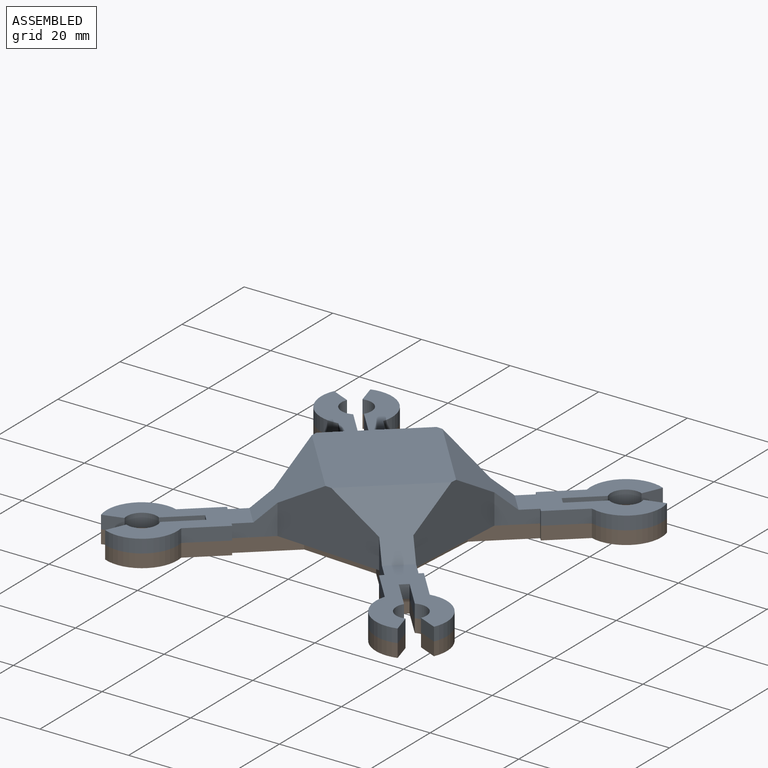
[diagram: assembled view]
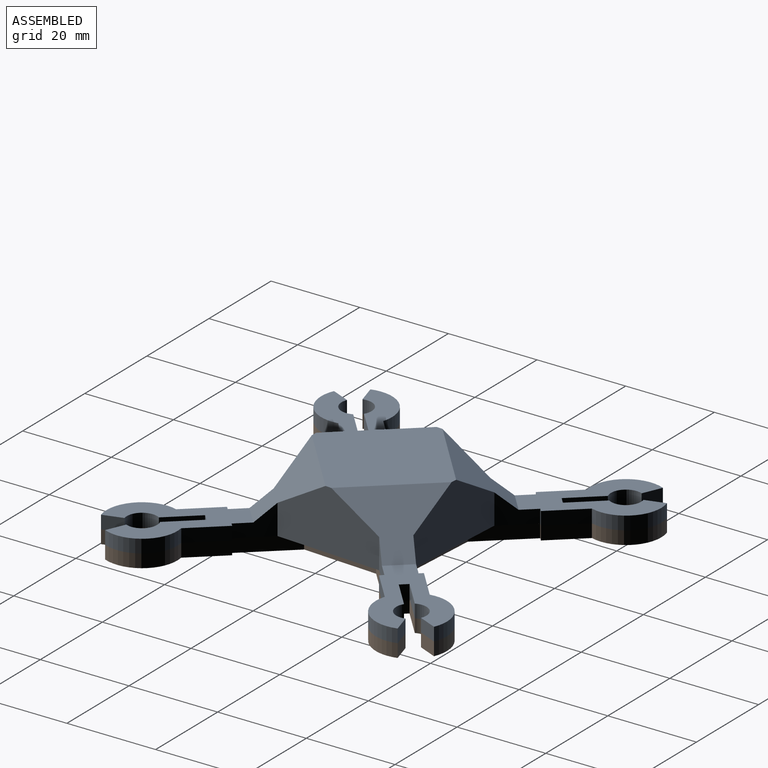
[diagram: assembled view, second angle]
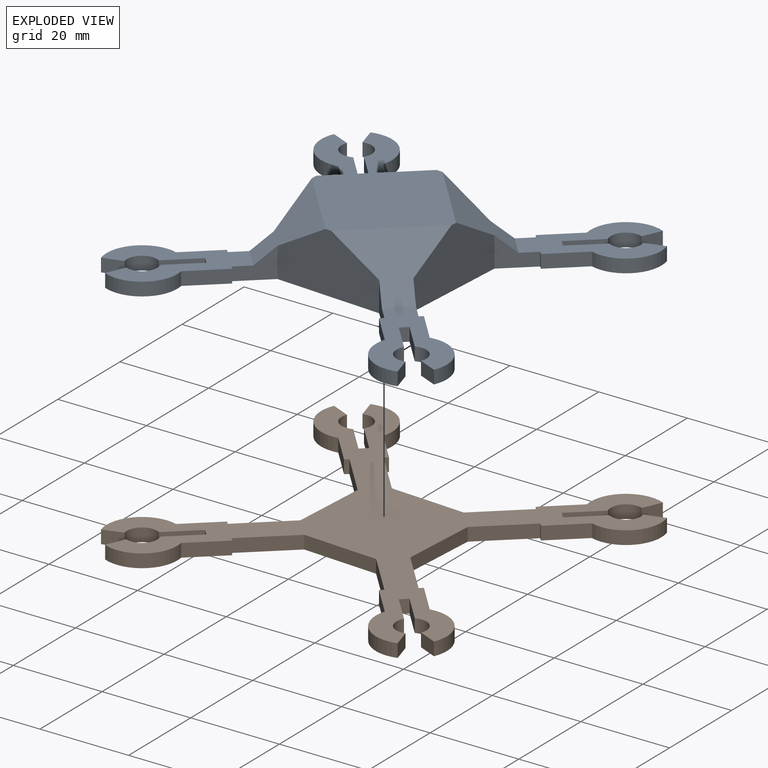
[diagram: exploded view]
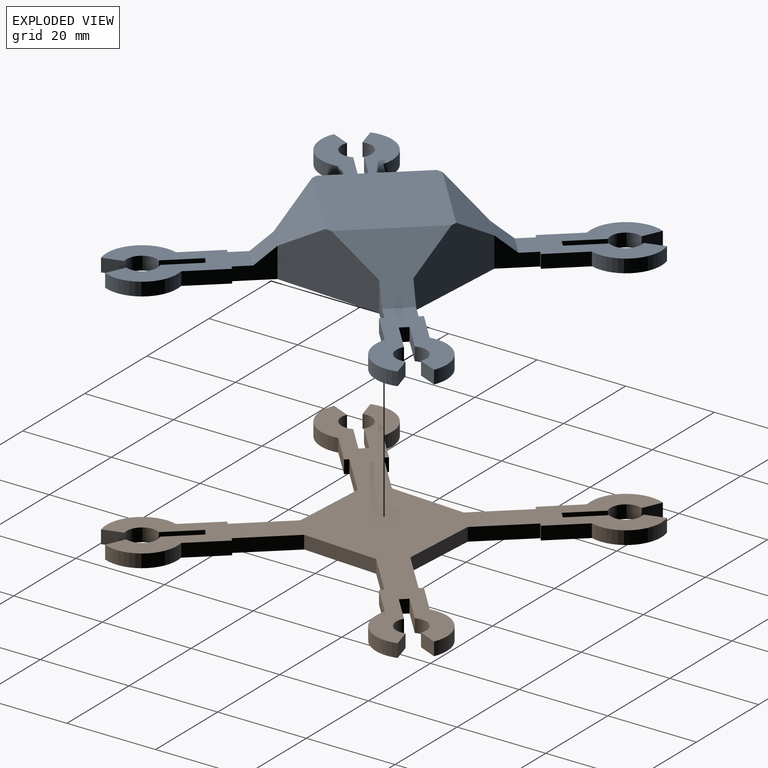
[diagram: exploded view, second angle]
ASSEMBLY  parts=2 mates=2
PART A: 147 faces, bbox 79.6x79.6x13.5 mm
  f0: plane 79.63x79.63mm, normal (0,0,-1), area 836.9mm2, adj f4,f5,f6,f7,f8,f9,f10,f11
  f1: plane 24.62x24.62mm, normal (0,0,1), area 222.9mm2, adj f8,f11,f12,f13,f14,f54,f55,f56
  f2: plane 24.62x24.62mm, normal (0,0,1), area 222.9mm2, adj f5,f10,f41,f42,f43,f44,f45,f46
  f3: plane 24.62x24.62mm, normal (0,0,1), area 222.9mm2, adj f4,f7,f28,f29,f30,f31,f32,f33
  f4: plane 6.78x6.05mm, normal (0.71,0.71,0), area 34.2mm2, adj f0,f3,f40,f68,f73
  f5: plane 6.78x6.05mm, normal (0.71,-0.71,0), area 34.2mm2, adj f0,f2,f41,f68,f70
  f6: plane 6.78x6.05mm, normal (0.71,-0.71,0), area 34.2mm2, adj f0,f27,f64,f67,f72
  f7: plane 6.78x6.05mm, normal (-0.71,-0.71,0), area 34.2mm2, adj f0,f3,f28,f67,f73
  f8: plane 6.78x6.05mm, normal (-0.71,-0.71,0), area 34.2mm2, adj f0,f1,f14,f66,f71
  f9: plane 6.78x6.05mm, normal (-0.71,0.71,0), area 34.2mm2, adj f0,f15,f64,f66,f72
  f10: plane 6.78x6.05mm, normal (-0.71,0.71,0), area 34.2mm2, adj f0,f2,f53,f65,f70
  f11: plane 6.78x6.05mm, normal (0.71,0.71,0), area 34.2mm2, adj f0,f1,f54,f65,f71
  f12: cylinder r=7.99mm len=10.73mm, axis (0,0,-1), area 51.7mm2, adj f0,f1,f13,f63
  f13: plane 6.7x6.7mm, normal (-0.71,-0.71,0), area 28.4mm2, adj f0,f1,f12,f14
  f14: plane 3x0.71mm, normal (0.71,-0.71,0), area 3mm2, adj f0,f1,f8,f13
  f15: plane 3x0.71mm, normal (0.71,0.71,0), area 3mm2, adj f0,f9,f16,f64
  f16: plane 6.7x6.7mm, normal (-0.71,0.71,0), area 28.4mm2, adj f0,f15,f17,f64
  f17: cylinder r=7.99mm len=10.73mm, axis (0,0,-1), area 51.7mm2, adj f0,f16,f18,f64
  f18: plane 4.32x3mm, normal (0.34,-0.94,0), area 13.8mm2, adj f0,f17,f19,f64
  f19: cylinder r=3.4mm len=4.99mm, axis (0,0,-1), area 24.5mm2, adj f0,f18,f20,f64
  f20: plane 6.08x6.08mm, normal (0.71,-0.71,0), area 25.8mm2, adj f0,f19,f21,f64
  f21: plane 3x1.41mm, normal (-0.71,-0.71,0), area 6mm2, adj f0,f20,f22,f64
  f22: plane 6.08x6.08mm, normal (-0.71,0.71,0), area 25.8mm2, adj f0,f21,f23,f64
  f23: cylinder r=3.4mm len=4.99mm, axis (0,0,-1), area 24.5mm2, adj f0,f22,f24,f64
  f24: plane 4.32x3mm, normal (-0.94,0.34,0), area 13.8mm2, adj f0,f23,f25,f64
  f25: cylinder r=7.99mm len=10.73mm, axis (0,0,-1), area 51.7mm2, adj f0,f24,f26,f64
  f26: plane 6.7x6.7mm, normal (0.71,-0.71,0), area 28.4mm2, adj f0,f25,f27,f64
  f27: plane 3x0.71mm, normal (0.71,0.71,0), area 3mm2, adj f0,f6,f26,f64
  f28: plane 3x0.71mm, normal (-0.71,0.71,0), area 3mm2, adj f0,f3,f7,f29
  f29: plane 6.7x6.7mm, normal (-0.71,-0.71,0), area 28.4mm2, adj f0,f3,f28,f30
  f30: cylinder r=7.99mm len=10.73mm, axis (0,0,-1), area 51.7mm2, adj f0,f3,f29,f31
  f31: plane 4.32x3mm, normal (0.94,0.34,0), area 13.8mm2, adj f0,f3,f30,f32
  f32: cylinder r=3.4mm len=4.99mm, axis (0,0,-1), area 24.5mm2, adj f0,f3,f31,f33
  f33: plane 6.08x6.08mm, normal (0.71,0.71,0), area 25.8mm2, adj f0,f3,f32,f34
  f34: plane 3x1.41mm, normal (0.71,-0.71,0), area 6mm2, adj f0,f3,f33,f35
  f35: plane 6.08x6.08mm, normal (-0.71,-0.71,0), area 25.8mm2, adj f0,f3,f34,f36
  f36: cylinder r=3.4mm len=4.99mm, axis (0,0,-1), area 24.5mm2, adj f0,f3,f35,f37
  f37: plane 4.32x3mm, normal (-0.34,-0.94,0), area 13.8mm2, adj f0,f3,f36,f38
  f38: cylinder r=7.99mm len=10.73mm, axis (0,0,-1), area 51.7mm2, adj f0,f3,f37,f39
  f39: plane 6.7x6.7mm, normal (0.71,0.71,0), area 28.4mm2, adj f0,f3,f38,f40
  f40: plane 3x0.71mm, normal (-0.71,0.71,0), area 3mm2, adj f0,f3,f4,f39
  f41: plane 3x0.71mm, normal (-0.71,-0.71,0), area 3mm2, adj f0,f2,f5,f42
  f42: plane 6.7x6.7mm, normal (0.71,-0.71,0), area 28.4mm2, adj f0,f2,f41,f43
  f43: cylinder r=7.99mm len=10.73mm, axis (0,0,-1), area 51.7mm2, adj f0,f2,f42,f44
  f44: plane 4.32x3mm, normal (-0.34,0.94,0), area 13.8mm2, adj f0,f2,f43,f45
  f45: cylinder r=3.4mm len=4.99mm, axis (0,0,-1), area 24.5mm2, adj f0,f2,f44,f46
  f46: plane 6.08x6.08mm, normal (-0.71,0.71,0), area 25.8mm2, adj f0,f2,f45,f47
  f47: plane 3x1.41mm, normal (0.71,0.71,0), area 6mm2, adj f0,f2,f46,f48
  f48: plane 6.08x6.08mm, normal (0.71,-0.71,0), area 25.8mm2, adj f0,f2,f47,f49
  f49: cylinder r=3.4mm len=4.99mm, axis (0,0,-1), area 24.5mm2, adj f0,f2,f48,f50
  f50: plane 4.32x3mm, normal (0.94,-0.34,0), area 13.8mm2, adj f0,f2,f49,f51
  f51: cylinder r=7.99mm len=10.73mm, axis (0,0,-1), area 51.7mm2, adj f0,f2,f50,f52
  f52: plane 6.7x6.7mm, normal (-0.71,0.71,0), area 28.4mm2, adj f0,f2,f51,f53
  f53: plane 3x0.71mm, normal (-0.71,-0.71,0), area 3mm2, adj f0,f2,f10,f52
  f54: plane 3x0.71mm, normal (0.71,-0.71,0), area 3mm2, adj f0,f1,f11,f55
  f55: plane 6.7x6.7mm, normal (0.71,0.71,0), area 28.4mm2, adj f0,f1,f54,f56
  f56: cylinder r=7.99mm len=10.73mm, axis (0,0,-1), area 51.7mm2, adj f0,f1,f55,f57
  f57: plane 4.32x3mm, normal (-0.94,-0.34,0), area 13.8mm2, adj f0,f1,f56,f58
  f58: cylinder r=3.4mm len=4.99mm, axis (0,0,-1), area 24.5mm2, adj f0,f1,f57,f59
  f59: plane 6.08x6.08mm, normal (-0.71,-0.71,0), area 25.8mm2, adj f0,f1,f58,f60
  f60: plane 3x1.41mm, normal (-0.71,0.71,0), area 6mm2, adj f0,f1,f59,f61
  f61: plane 6.08x6.08mm, normal (0.71,0.71,0), area 25.8mm2, adj f0,f1,f60,f62
  f62: cylinder r=3.4mm len=4.99mm, axis (0,0,-1), area 24.5mm2, adj f0,f1,f61,f63
  f63: plane 4.32x3mm, normal (0.34,0.94,0), area 13.8mm2, adj f0,f1,f12,f62
  f64: plane 24.62x24.62mm, normal (0,0,1), area 222.9mm2, adj f6,f9,f15,f16,f17,f18,f19,f20
  f65: plane 24.01x13.5mm, normal (0,1,0), area 248.1mm2, adj f0,f10,f11,f69,f70,f71
  f66: plane 24.01x13.5mm, normal (-1,0,0), area 248.1mm2, adj f0,f8,f9,f69,f71,f72
  f67: plane 24.01x13.5mm, normal (0,-1,0), area 248.1mm2, adj f0,f6,f7,f69,f72,f73
  f68: plane 24.01x13.5mm, normal (1,0,0), area 248.1mm2, adj f0,f4,f5,f69,f70,f73
  f69: plane 33x33mm, normal (0,0,1), area 588.7mm2, adj f65,f66,f67,f68,f70,f71,f72,f73
  f70: plane 19.01x19.01mm, normal (0.45,0.45,0.77), area 187.5mm2, adj f2,f5,f10,f65,f68,f69
  f71: plane 19.01x19.01mm, normal (-0.45,0.45,0.77), area 187.5mm2, adj f1,f8,f11,f65,f66,f69
  f72: plane 19.01x19.01mm, normal (-0.45,-0.45,0.77), area 187.5mm2, adj f6,f9,f64,f66,f67,f69
  f73: plane 19.01x19.01mm, normal (0.45,-0.45,0.77), area 187.5mm2, adj f3,f4,f7,f67,f68,f69
  f74: plane 22.45x22.45mm, normal (0,0,-1), area 66.9mm2, adj f81,f84,f85,f86,f87,f127,f128,f129
  f75: plane 22.45x22.45mm, normal (0,0,-1), area 66.9mm2, adj f78,f83,f114,f115,f116,f117,f118,f119
  f76: plane 22.45x22.45mm, normal (0,0,-1), area 66.9mm2, adj f77,f80,f101,f102,f103,f104,f105,f106
  f77: plane 7.55x7.55mm, normal (-0.71,-0.71,0), area 24.8mm2, adj f0,f76,f113,f141,f146
  f78: plane 7.55x7.55mm, normal (-0.71,0.71,0), area 24.8mm2, adj f0,f75,f114,f141,f143
  f79: plane 7.55x7.55mm, normal (-0.71,0.71,0), area 24.8mm2, adj f0,f100,f137,f140,f145
  f80: plane 7.55x7.55mm, normal (0.71,0.71,0), area 24.8mm2, adj f0,f76,f101,f140,f146
  f81: plane 7.55x7.55mm, normal (0.71,0.71,0), area 24.8mm2, adj f0,f74,f87,f139,f144
  f82: plane 7.55x7.55mm, normal (0.71,-0.71,0), area 24.8mm2, adj f0,f88,f137,f139,f145
  f83: plane 7.55x7.55mm, normal (0.71,-0.71,0), area 24.8mm2, adj f0,f75,f126,f138,f143
  f84: plane 7.55x7.55mm, normal (-0.71,-0.71,0), area 24.8mm2, adj f0,f74,f127,f138,f144
  f85: cylinder r=6.49mm len=8.78mm, axis (0,0,-1), area 19.9mm2, adj f0,f74,f86,f136
  f86: plane 6.28x6.28mm, normal (0.71,0.71,0), area 13.3mm2, adj f0,f74,f85,f87
  f87: plane 1.5x0.71mm, normal (-0.71,0.71,0), area 1.5mm2, adj f0,f74,f81,f86
  f88: plane 1.5x0.71mm, normal (-0.71,-0.71,0), area 1.5mm2, adj f0,f82,f89,f137
  f89: plane 6.28x6.28mm, normal (0.71,-0.71,0), area 13.3mm2, adj f0,f88,f90,f137
  f90: cylinder r=6.49mm len=8.78mm, axis (0,0,-1), area 19.9mm2, adj f0,f89,f91,f137
  f91: plane 1.56x1.5mm, normal (-0.34,0.94,0), area 2.5mm2, adj f0,f90,f92,f137
  f92: cylinder r=4.9mm len=6.11mm, axis (0,0,-1), area 13.7mm2, adj f0,f91,f93,f137
  f93: plane 6.46x6.46mm, normal (-0.71,0.71,0), area 13.7mm2, adj f0,f92,f94,f137
  f94: plane 3.54x3.54mm, normal (0.71,0.71,0), area 7.5mm2, adj f0,f93,f95,f137
  f95: plane 6.46x6.46mm, normal (0.71,-0.71,0), area 13.7mm2, adj f0,f94,f96,f137
  f96: cylinder r=4.9mm len=6.11mm, axis (0,0,-1), area 13.7mm2, adj f0,f95,f97,f137
  f97: plane 1.56x1.5mm, normal (0.94,-0.34,0), area 2.5mm2, adj f0,f96,f98,f137
  f98: cylinder r=6.49mm len=8.78mm, axis (0,0,-1), area 19.9mm2, adj f0,f97,f99,f137
  f99: plane 6.28x6.28mm, normal (-0.71,0.71,0), area 13.3mm2, adj f0,f98,f100,f137
  f100: plane 1.5x0.71mm, normal (-0.71,-0.71,0), area 1.5mm2, adj f0,f79,f99,f137
  f101: plane 1.5x0.71mm, normal (0.71,-0.71,0), area 1.5mm2, adj f0,f76,f80,f102
  f102: plane 6.28x6.28mm, normal (0.71,0.71,0), area 13.3mm2, adj f0,f76,f101,f103
  f103: cylinder r=6.49mm len=8.78mm, axis (0,0,-1), area 19.9mm2, adj f0,f76,f102,f104
  f104: plane 1.56x1.5mm, normal (-0.94,-0.34,0), area 2.5mm2, adj f0,f76,f103,f105
  f105: cylinder r=4.9mm len=6.11mm, axis (0,0,-1), area 13.7mm2, adj f0,f76,f104,f106
  f106: plane 6.46x6.46mm, normal (-0.71,-0.71,0), area 13.7mm2, adj f0,f76,f105,f107
  f107: plane 3.54x3.54mm, normal (-0.71,0.71,0), area 7.5mm2, adj f0,f76,f106,f108
  f108: plane 6.46x6.46mm, normal (0.71,0.71,0), area 13.7mm2, adj f0,f76,f107,f109
  f109: cylinder r=4.9mm len=6.11mm, axis (0,0,-1), area 13.7mm2, adj f0,f76,f108,f110
  f110: plane 1.56x1.5mm, normal (0.34,0.94,0), area 2.5mm2, adj f0,f76,f109,f111
  f111: cylinder r=6.49mm len=8.78mm, axis (0,0,-1), area 19.9mm2, adj f0,f76,f110,f112
  f112: plane 6.28x6.28mm, normal (-0.71,-0.71,0), area 13.3mm2, adj f0,f76,f111,f113
  f113: plane 1.5x0.71mm, normal (0.71,-0.71,0), area 1.5mm2, adj f0,f76,f77,f112
  f114: plane 1.5x0.71mm, normal (0.71,0.71,0), area 1.5mm2, adj f0,f75,f78,f115
  f115: plane 6.28x6.28mm, normal (-0.71,0.71,0), area 13.3mm2, adj f0,f75,f114,f116
  f116: cylinder r=6.49mm len=8.78mm, axis (0,0,-1), area 19.9mm2, adj f0,f75,f115,f117
  f117: plane 1.56x1.5mm, normal (0.34,-0.94,0), area 2.5mm2, adj f0,f75,f116,f118
  f118: cylinder r=4.9mm len=6.11mm, axis (0,0,-1), area 13.7mm2, adj f0,f75,f117,f119
  f119: plane 6.46x6.46mm, normal (0.71,-0.71,0), area 13.7mm2, adj f0,f75,f118,f120
  f120: plane 3.54x3.54mm, normal (-0.71,-0.71,0), area 7.5mm2, adj f0,f75,f119,f121
  f121: plane 6.46x6.46mm, normal (-0.71,0.71,0), area 13.7mm2, adj f0,f75,f120,f122
  f122: cylinder r=4.9mm len=6.11mm, axis (0,0,-1), area 13.7mm2, adj f0,f75,f121,f123
  f123: plane 1.56x1.5mm, normal (-0.94,0.34,0), area 2.5mm2, adj f0,f75,f122,f124
  f124: cylinder r=6.49mm len=8.78mm, axis (0,0,-1), area 19.9mm2, adj f0,f75,f123,f125
  f125: plane 6.28x6.28mm, normal (0.71,-0.71,0), area 13.3mm2, adj f0,f75,f124,f126
  f126: plane 1.5x0.71mm, normal (0.71,0.71,0), area 1.5mm2, adj f0,f75,f83,f125
  f127: plane 1.5x0.71mm, normal (-0.71,0.71,0), area 1.5mm2, adj f0,f74,f84,f128
  f128: plane 6.28x6.28mm, normal (-0.71,-0.71,0), area 13.3mm2, adj f0,f74,f127,f129
  f129: cylinder r=6.49mm len=8.78mm, axis (0,0,-1), area 19.9mm2, adj f0,f74,f128,f130
  f130: plane 1.56x1.5mm, normal (0.94,0.34,0), area 2.5mm2, adj f0,f74,f129,f131
  f131: cylinder r=4.9mm len=6.11mm, axis (0,0,-1), area 13.7mm2, adj f0,f74,f130,f132
  f132: plane 6.46x6.46mm, normal (0.71,0.71,0), area 13.7mm2, adj f0,f74,f131,f133
  f133: plane 3.54x3.54mm, normal (0.71,-0.71,0), area 7.5mm2, adj f0,f74,f132,f134
  f134: plane 6.46x6.46mm, normal (-0.71,-0.71,0), area 13.7mm2, adj f0,f74,f133,f135
  f135: cylinder r=4.9mm len=6.11mm, axis (0,0,-1), area 13.7mm2, adj f0,f74,f134,f136
  f136: plane 1.56x1.5mm, normal (-0.34,-0.94,0), area 2.5mm2, adj f0,f74,f85,f135
  f137: plane 22.45x22.45mm, normal (0,0,-1), area 66.9mm2, adj f79,f82,f88,f89,f90,f91,f92,f93
  f138: plane 25.25x12mm, normal (0,-1,0), area 228.4mm2, adj f0,f83,f84,f142,f143,f144
  f139: plane 25.25x12mm, normal (1,0,0), area 228.4mm2, adj f0,f81,f82,f142,f144,f145
  f140: plane 25.25x12mm, normal (0,1,0), area 228.4mm2, adj f0,f79,f80,f142,f145,f146
  f141: plane 25.25x12mm, normal (-1,0,0), area 228.4mm2, adj f0,f77,f78,f142,f143,f146
  f142: plane 30x30mm, normal (0,0,-1), area 530.7mm2, adj f138,f139,f140,f141,f143,f144,f145,f146
  f143: plane 16.83x16.83mm, normal (-0.45,-0.45,-0.77), area 137mm2, adj f75,f78,f83,f138,f141,f142
  f144: plane 16.83x16.83mm, normal (0.45,-0.45,-0.77), area 137mm2, adj f74,f81,f84,f138,f139,f142
  f145: plane 16.83x16.83mm, normal (0.45,0.45,-0.77), area 137mm2, adj f79,f82,f137,f139,f140,f142
  f146: plane 16.83x16.83mm, normal (-0.45,0.45,-0.77), area 137mm2, adj f76,f77,f80,f140,f141,f142
PART B: 66 faces, bbox 79.6x79.6x3 mm
  f0: cylinder r=7.99mm len=10.73mm, axis (0,0,-1), area 51.7mm2, adj f1,f63,f64,f65
  f1: plane 6.7x6.7mm, normal (-0.71,-0.71,0), area 28.4mm2, adj f0,f2,f64,f65
  f2: plane 3x0.71mm, normal (0.71,-0.71,0), area 3mm2, adj f1,f3,f64,f65
  f3: plane 9.55x9.55mm, normal (-0.71,-0.71,0), area 40.5mm2, adj f2,f4,f64,f65
  f4: plane 17.01x3mm, normal (-1,0,0), area 51mm2, adj f3,f5,f64,f65
  f5: plane 9.55x9.55mm, normal (-0.71,0.71,0), area 40.5mm2, adj f4,f6,f64,f65
  f6: plane 3x0.71mm, normal (0.71,0.71,0), area 3mm2, adj f5,f7,f64,f65
  f7: plane 6.7x6.7mm, normal (-0.71,0.71,0), area 28.4mm2, adj f6,f8,f64,f65
  f8: cylinder r=7.99mm len=10.73mm, axis (0,0,-1), area 51.7mm2, adj f7,f9,f64,f65
  f9: plane 4.32x3mm, normal (0.34,-0.94,0), area 13.8mm2, adj f8,f10,f64,f65
  f10: cylinder r=3.4mm len=4.99mm, axis (0,0,-1), area 24.5mm2, adj f9,f11,f64,f65
  f11: plane 6.08x6.08mm, normal (0.71,-0.71,0), area 25.8mm2, adj f10,f12,f64,f65
  f12: plane 3x1.41mm, normal (-0.71,-0.71,0), area 6mm2, adj f11,f13,f64,f65
  f13: plane 6.08x6.08mm, normal (-0.71,0.71,0), area 25.8mm2, adj f12,f14,f64,f65
  f14: cylinder r=3.4mm len=4.99mm, axis (0,0,-1), area 24.5mm2, adj f13,f15,f64,f65
  f15: plane 4.32x3mm, normal (-0.94,0.34,0), area 13.8mm2, adj f14,f16,f64,f65
  f16: cylinder r=7.99mm len=10.73mm, axis (0,0,-1), area 51.7mm2, adj f15,f17,f64,f65
  f17: plane 6.7x6.7mm, normal (0.71,-0.71,0), area 28.4mm2, adj f16,f18,f64,f65
  f18: plane 3x0.71mm, normal (0.71,0.71,0), area 3mm2, adj f17,f19,f64,f65
  f19: plane 9.55x9.55mm, normal (0.71,-0.71,0), area 40.5mm2, adj f18,f20,f64,f65
  f20: plane 17.01x3mm, normal (0,-1,0), area 51mm2, adj f19,f21,f64,f65
  f21: plane 9.55x9.55mm, normal (-0.71,-0.71,0), area 40.5mm2, adj f20,f22,f64,f65
  f22: plane 3x0.71mm, normal (-0.71,0.71,0), area 3mm2, adj f21,f23,f64,f65
  f23: plane 6.7x6.7mm, normal (-0.71,-0.71,0), area 28.4mm2, adj f22,f24,f64,f65
  f24: cylinder r=7.99mm len=10.73mm, axis (0,0,-1), area 51.7mm2, adj f23,f25,f64,f65
  f25: plane 4.32x3mm, normal (0.94,0.34,0), area 13.8mm2, adj f24,f26,f64,f65
  f26: cylinder r=3.4mm len=4.99mm, axis (0,0,-1), area 24.5mm2, adj f25,f27,f64,f65
  f27: plane 6.08x6.08mm, normal (0.71,0.71,0), area 25.8mm2, adj f26,f28,f64,f65
  f28: plane 3x1.41mm, normal (0.71,-0.71,0), area 6mm2, adj f27,f29,f64,f65
  f29: plane 6.08x6.08mm, normal (-0.71,-0.71,0), area 25.8mm2, adj f28,f30,f64,f65
  f30: cylinder r=3.4mm len=4.99mm, axis (0,0,-1), area 24.5mm2, adj f29,f31,f64,f65
  f31: plane 4.32x3mm, normal (-0.34,-0.94,0), area 13.8mm2, adj f30,f32,f64,f65
  f32: cylinder r=7.99mm len=10.73mm, axis (0,0,-1), area 51.7mm2, adj f31,f33,f64,f65
  f33: plane 6.7x6.7mm, normal (0.71,0.71,0), area 28.4mm2, adj f32,f34,f64,f65
  f34: plane 3x0.71mm, normal (-0.71,0.71,0), area 3mm2, adj f33,f35,f64,f65
  f35: plane 9.55x9.55mm, normal (0.71,0.71,0), area 40.5mm2, adj f34,f36,f64,f65
  f36: plane 17.01x3mm, normal (1,0,0), area 51mm2, adj f35,f37,f64,f65
  f37: plane 9.55x9.55mm, normal (0.71,-0.71,0), area 40.5mm2, adj f36,f38,f64,f65
  f38: plane 3x0.71mm, normal (-0.71,-0.71,0), area 3mm2, adj f37,f39,f64,f65
  f39: plane 6.7x6.7mm, normal (0.71,-0.71,0), area 28.4mm2, adj f38,f40,f64,f65
  f40: cylinder r=7.99mm len=10.73mm, axis (0,0,-1), area 51.7mm2, adj f39,f41,f64,f65
  f41: plane 4.32x3mm, normal (-0.34,0.94,0), area 13.8mm2, adj f40,f42,f64,f65
  f42: cylinder r=3.4mm len=4.99mm, axis (0,0,-1), area 24.5mm2, adj f41,f43,f64,f65
  f43: plane 6.08x6.08mm, normal (-0.71,0.71,0), area 25.8mm2, adj f42,f44,f64,f65
  f44: plane 3x1.41mm, normal (0.71,0.71,0), area 6mm2, adj f43,f45,f64,f65
  f45: plane 6.08x6.08mm, normal (0.71,-0.71,0), area 25.8mm2, adj f44,f46,f64,f65
  f46: cylinder r=3.4mm len=4.99mm, axis (0,0,-1), area 24.5mm2, adj f45,f47,f64,f65
  f47: plane 4.32x3mm, normal (0.94,-0.34,0), area 13.8mm2, adj f46,f48,f64,f65
  f48: cylinder r=7.99mm len=10.73mm, axis (0,0,-1), area 51.7mm2, adj f47,f49,f64,f65
  f49: plane 6.7x6.7mm, normal (-0.71,0.71,0), area 28.4mm2, adj f48,f50,f64,f65
  f50: plane 3x0.71mm, normal (-0.71,-0.71,0), area 3mm2, adj f49,f51,f64,f65
  f51: plane 9.55x9.55mm, normal (-0.71,0.71,0), area 40.5mm2, adj f50,f52,f64,f65
  f52: plane 17.01x3mm, normal (0,1,0), area 51mm2, adj f51,f53,f64,f65
  f53: plane 9.55x9.55mm, normal (0.71,0.71,0), area 40.5mm2, adj f52,f54,f64,f65
  f54: plane 3x0.71mm, normal (0.71,-0.71,0), area 3mm2, adj f53,f55,f64,f65
  f55: plane 6.7x6.7mm, normal (0.71,0.71,0), area 28.4mm2, adj f54,f56,f64,f65
  f56: cylinder r=7.99mm len=10.73mm, axis (0,0,-1), area 51.7mm2, adj f55,f57,f64,f65
  f57: plane 4.32x3mm, normal (-0.94,-0.34,0), area 13.8mm2, adj f56,f58,f64,f65
  f58: cylinder r=3.4mm len=4.99mm, axis (0,0,-1), area 24.5mm2, adj f57,f59,f64,f65
  f59: plane 6.08x6.08mm, normal (-0.71,-0.71,0), area 25.8mm2, adj f58,f60,f64,f65
  f60: plane 3x1.41mm, normal (-0.71,0.71,0), area 6mm2, adj f59,f61,f64,f65
  f61: plane 6.08x6.08mm, normal (0.71,0.71,0), area 25.8mm2, adj f60,f62,f64,f65
  f62: cylinder r=3.4mm len=4.99mm, axis (0,0,-1), area 24.5mm2, adj f61,f63,f64,f65
  f63: plane 4.32x3mm, normal (0.34,0.94,0), area 13.8mm2, adj f0,f62,f64,f65
  f64: plane 79.63x79.63mm, normal (0,0,1), area 1767.9mm2, adj f0,f1,f2,f3,f4,f5,f6,f7
  f65: plane 79.63x79.63mm, normal (0,0,-1), area 1767.9mm2, adj f0,f1,f2,f3,f4,f5,f6,f7
PLACE A rot(axis=(0,0,-1),3.5deg) t=(133.78,151.16,43.52)mm
PLACE B rot(axis=(0,0,-1),3.5deg) t=(133.78,151.16,40.52)mm
MATE revolute B.f24 <-> A.f30  axis (0,0,1) through (163.57,117.44,43.52)mm
MATE planar B.f64 <-> A.f0  axis (0,0,1) through (141.46,137.66,43.52)mm
